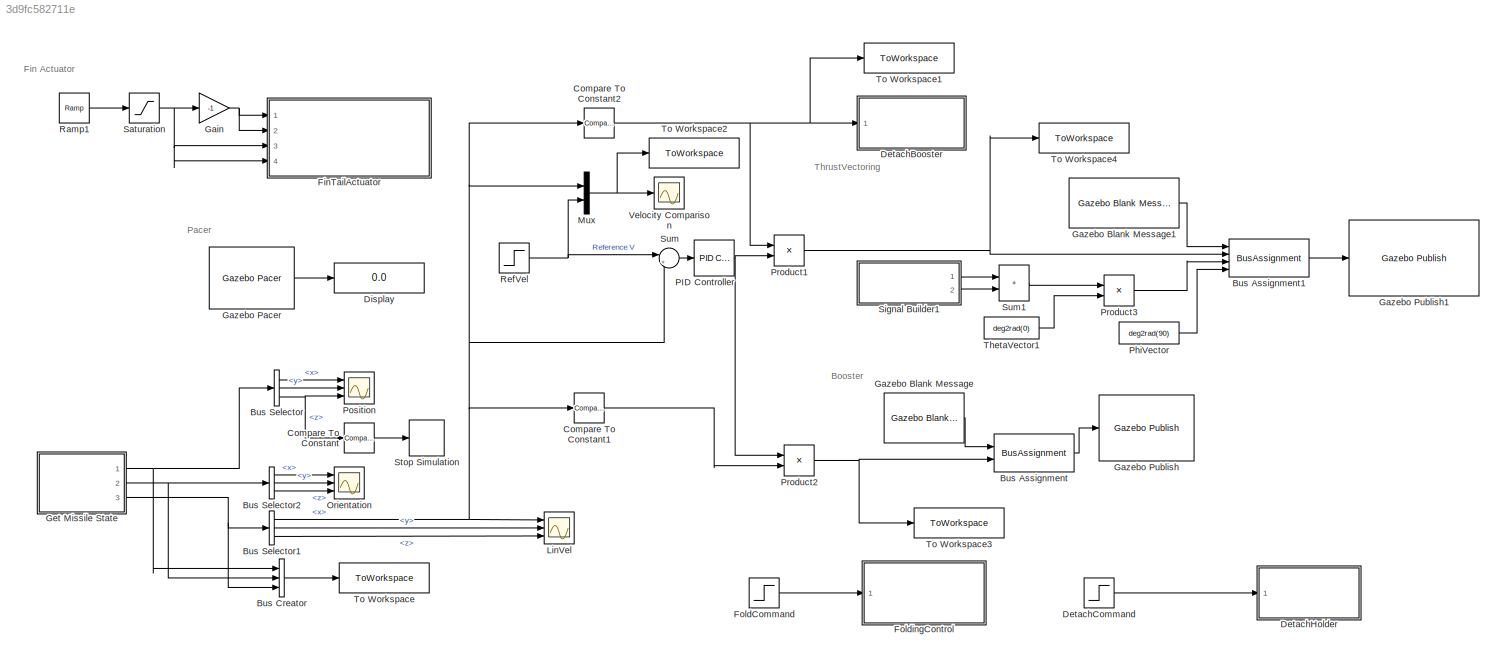
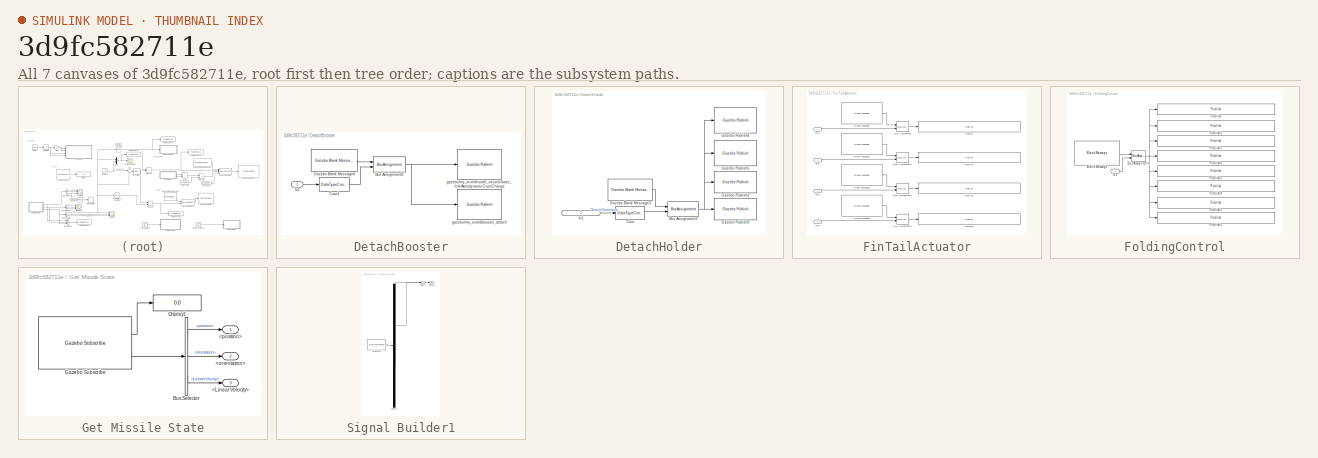
[diagram: thumbnail index - all 7 canvases of the model, root first then tree order]
MODEL slx_3d9fc582711e
KIND model
CONFIG AbsTol = auto
CONFIG EnableMultiTasking = off
CONFIG FixedStep = 1e-3
CONFIG MaxStep = auto
CONFIG MinStep = auto
CONFIG RelTol = 1e-3
CONFIG SampleTimeConstraint = Unconstrained
CONFIG SolverName = FixedStepAuto
CONFIG StartTime = 0.0
CONFIG StopTime = 30
BLOCK [BusAssignment] Bus Assignment
  AssignedSignals = data
  Ports = [2, 1]
BLOCK [BusAssignment] Bus Assignment1
  AssignedSignals = r,theta,phi
  Ports = [4, 1]
BLOCK [BusCreator] Bus Creator
  DisplayOption = bar
  InheritFromInputs = on
  Inputs = 3
  Ports = [3, 1]
BLOCK [BusSelector] Bus Selector
  OutputSignals = x,y,z
  Ports = [1, 3]
BLOCK [BusSelector] Bus Selector1
  OutputSignals = x,y,z
  Ports = [1, 3]
BLOCK [BusSelector] Bus Selector2
  OutputSignals = x,y,z
  Ports = [1, 3]
BLOCK [Reference] Compare To Constant  REF=simulink/Logic and Bit
Operations/Compare
To Constant
  Ports = [1, 1]
  SourceBlock = simulink/Logic and Bit\nOperations/Compare\nTo Constant
  SourceProductBaseCode = SL
  SourceType = Compare To Constant
BLOCK [Reference] Compare To Constant1  REF=simulink/Logic and Bit
Operations/Compare
To Constant
  Ports = [1, 1]
  SourceBlock = simulink/Logic and Bit\nOperations/Compare\nTo Constant
  SourceProductBaseCode = SL
  SourceType = Compare To Constant
BLOCK [Reference] Compare To Constant2  REF=simulink/Logic and Bit
Operations/Compare
To Constant
  Ports = [1, 1]
  SourceBlock = simulink/Logic and Bit\nOperations/Compare\nTo Constant
  SourceProductBaseCode = SL
  SourceType = Compare To Constant
BLOCK [SubSystem] DetachBooster
  Ports = [1]
  RequestExecContextInheritance = off
BLOCK [BusAssignment] DetachBooster/Bus Assignment4
  AssignedSignals = data
  Ports = [2, 1]
BLOCK [DataTypeConversion] DetachBooster/Cast1
  OutDataTypeStr = int32
  RndMeth = Floor
  SaturateOnIntegerOverflow = off
BLOCK [Reference] DetachBooster/Gazebo Blank Message4  REF=robotgazebolib/Gazebo Blank Message
  Ports = [0, 1]
  SourceBlock = robotgazebolib/Gazebo Blank Message
  SourceProductBaseCode = RO
  SourceType = Gazebo Blank Message
BLOCK [Inport] DetachBooster/In1
BLOCK [Reference] DetachBooster/gazebo//my_world//booster_detach  REF=robotgazebolib/Gazebo Publish
  Ports = [1]
  SourceBlock = robotgazebolib/Gazebo Publish
  SourceProductBaseCode = RO
  SourceType = Gazebo Publish
BLOCK [Reference] DetachBooster/gazebo//my_world//model_missile//base_link//AerodynamicCaseChange  REF=robotgazebolib/Gazebo Publish
  Ports = [1]
  SourceBlock = robotgazebolib/Gazebo Publish
  SourceProductBaseCode = RO
  SourceType = Gazebo Publish
BLOCK [Step] DetachCommand
  SampleTime = 0
  Time = 0.5
BLOCK [SubSystem] DetachHolder
  Ports = [1]
  RequestExecContextInheritance = off
BLOCK [BusAssignment] DetachHolder/Bus Assignment3
  AssignedSignals = data
  Ports = [2, 1]
BLOCK [DataTypeConversion] DetachHolder/Cast
  OutDataTypeStr = int32
  RndMeth = Floor
  SaturateOnIntegerOverflow = off
BLOCK [Reference] DetachHolder/Gazebo Blank Message3  REF=robotgazebolib/Gazebo Blank Message
  Ports = [0, 1]
  SourceBlock = robotgazebolib/Gazebo Blank Message
  SourceProductBaseCode = RO
  SourceType = Gazebo Blank Message
BLOCK [Reference] DetachHolder/Gazebo Publish2  REF=robotgazebolib/Gazebo Publish
  Ports = [1]
  SourceBlock = robotgazebolib/Gazebo Publish
  SourceProductBaseCode = RO
  SourceType = Gazebo Publish
BLOCK [Reference] DetachHolder/Gazebo Publish3  REF=robotgazebolib/Gazebo Publish
  Ports = [1]
  SourceBlock = robotgazebolib/Gazebo Publish
  SourceProductBaseCode = RO
  SourceType = Gazebo Publish
BLOCK [Reference] DetachHolder/Gazebo Publish4  REF=robotgazebolib/Gazebo Publish
  Ports = [1]
  SourceBlock = robotgazebolib/Gazebo Publish
  SourceProductBaseCode = RO
  SourceType = Gazebo Publish
BLOCK [Reference] DetachHolder/Gazebo Publish5  REF=robotgazebolib/Gazebo Publish
  Ports = [1]
  SourceBlock = robotgazebolib/Gazebo Publish
  SourceProductBaseCode = RO
  SourceType = Gazebo Publish
BLOCK [Inport] DetachHolder/In1
  IconDisplay = Port number and signal name
BLOCK [Display] Display
  Decimation = 1
  Ports = [1]
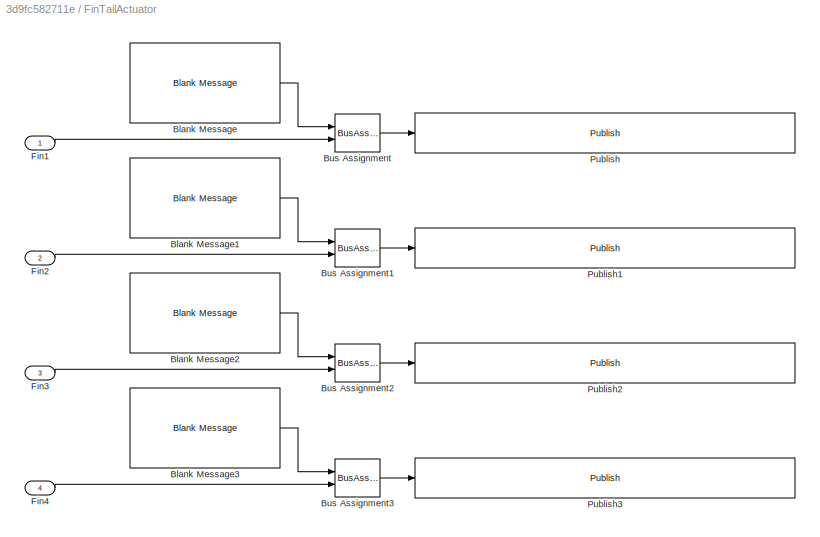
BLOCK [SubSystem] FinTailActuator
  Ports = [4]
  RequestExecContextInheritance = off
BLOCK [Reference] FinTailActuator/Blank Message  REF=robotlib/Blank Message
  Ports = [0, 1]
  SourceBlock = robotlib/Blank Message
  SourceProductBaseCode = RR
  SourceType = ROS Blank Message
BLOCK [Reference] FinTailActuator/Blank Message1  REF=robotlib/Blank Message
  Ports = [0, 1]
  SourceBlock = robotlib/Blank Message
  SourceProductBaseCode = RR
  SourceType = ROS Blank Message
BLOCK [Reference] FinTailActuator/Blank Message2  REF=robotlib/Blank Message
  Ports = [0, 1]
  SourceBlock = robotlib/Blank Message
  SourceProductBaseCode = RR
  SourceType = ROS Blank Message
BLOCK [Reference] FinTailActuator/Blank Message3  REF=robotlib/Blank Message
  Ports = [0, 1]
  SourceBlock = robotlib/Blank Message
  SourceProductBaseCode = RR
  SourceType = ROS Blank Message
BLOCK [BusAssignment] FinTailActuator/Bus Assignment
  AssignedSignals = Data
  Ports = [2, 1]
BLOCK [BusAssignment] FinTailActuator/Bus Assignment1
  AssignedSignals = Data
  Ports = [2, 1]
BLOCK [BusAssignment] FinTailActuator/Bus Assignment2
  AssignedSignals = Data
  Ports = [2, 1]
BLOCK [BusAssignment] FinTailActuator/Bus Assignment3
  AssignedSignals = Data
  Ports = [2, 1]
BLOCK [Inport] FinTailActuator/Fin1
BLOCK [Inport] FinTailActuator/Fin2
  Port = 2
BLOCK [Inport] FinTailActuator/Fin3
  Port = 3
BLOCK [Inport] FinTailActuator/Fin4
  Port = 4
BLOCK [Reference] FinTailActuator/Publish  REF=robotlib/Publish
  Ports = [1]
  SourceBlock = robotlib/Publish
  SourceProductBaseCode = RR
  SourceType = ROS Publish
BLOCK [Reference] FinTailActuator/Publish1  REF=robotlib/Publish
  Ports = [1]
  SourceBlock = robotlib/Publish
  SourceProductBaseCode = RR
  SourceType = ROS Publish
BLOCK [Reference] FinTailActuator/Publish2  REF=robotlib/Publish
  Ports = [1]
  SourceBlock = robotlib/Publish
  SourceProductBaseCode = RR
  SourceType = ROS Publish
BLOCK [Reference] FinTailActuator/Publish3  REF=robotlib/Publish
  Ports = [1]
  SourceBlock = robotlib/Publish
  SourceProductBaseCode = RR
  SourceType = ROS Publish
BLOCK [Step] FoldCommand
  After = 0
  Before = deg2rad(123)
  SampleTime = 0
  Time = 0.5
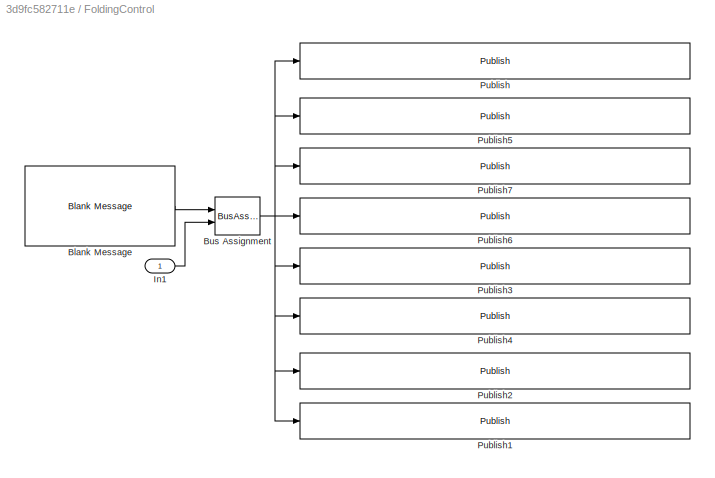
BLOCK [SubSystem] FoldingControl
  Ports = [1]
  RequestExecContextInheritance = off
BLOCK [Reference] FoldingControl/Blank Message  REF=robotlib/Blank Message
  Ports = [0, 1]
  SourceBlock = robotlib/Blank Message
  SourceProductBaseCode = RR
  SourceType = ROS Blank Message
BLOCK [BusAssignment] FoldingControl/Bus Assignment
  AssignedSignals = Data
  Ports = [2, 1]
BLOCK [Inport] FoldingControl/In1
BLOCK [Reference] FoldingControl/Publish  REF=robotlib/Publish
  Ports = [1]
  SourceBlock = robotlib/Publish
  SourceProductBaseCode = RR
  SourceType = ROS Publish
BLOCK [Reference] FoldingControl/Publish1  REF=robotlib/Publish
  Ports = [1]
  SourceBlock = robotlib/Publish
  SourceProductBaseCode = RR
  SourceType = ROS Publish
BLOCK [Reference] FoldingControl/Publish2  REF=robotlib/Publish
  Ports = [1]
  SourceBlock = robotlib/Publish
  SourceProductBaseCode = RR
  SourceType = ROS Publish
BLOCK [Reference] FoldingControl/Publish3  REF=robotlib/Publish
  Ports = [1]
  SourceBlock = robotlib/Publish
  SourceProductBaseCode = RR
  SourceType = ROS Publish
BLOCK [Reference] FoldingControl/Publish4  REF=robotlib/Publish
  Ports = [1]
  SourceBlock = robotlib/Publish
  SourceProductBaseCode = RR
  SourceType = ROS Publish
BLOCK [Reference] FoldingControl/Publish5  REF=robotlib/Publish
  Ports = [1]
  SourceBlock = robotlib/Publish
  SourceProductBaseCode = RR
  SourceType = ROS Publish
BLOCK [Reference] FoldingControl/Publish6  REF=robotlib/Publish
  Ports = [1]
  SourceBlock = robotlib/Publish
  SourceProductBaseCode = RR
  SourceType = ROS Publish
BLOCK [Reference] FoldingControl/Publish7  REF=robotlib/Publish
  Ports = [1]
  SourceBlock = robotlib/Publish
  SourceProductBaseCode = RR
  SourceType = ROS Publish
BLOCK [Gain] Gain
  Gain = -1
BLOCK [Reference] Gazebo Blank Message  REF=robotgazebolib/Gazebo Blank Message
  Ports = [0, 1]
  SourceBlock = robotgazebolib/Gazebo Blank Message
  SourceProductBaseCode = RO
  SourceType = Gazebo Blank Message
BLOCK [Reference] Gazebo Blank Message1  REF=robotgazebolib/Gazebo Blank Message
  Ports = [0, 1]
  SourceBlock = robotgazebolib/Gazebo Blank Message
  SourceProductBaseCode = RO
  SourceType = Gazebo Blank Message
BLOCK [Reference] Gazebo Pacer  REF=robotgazebolib/Gazebo Pacer
  Ports = [0, 1]
  SourceBlock = robotgazebolib/Gazebo Pacer
  SourceProductBaseCode = RO
  SourceType = Gazebo Pacer
BLOCK [Reference] Gazebo Publish  REF=robotgazebolib/Gazebo Publish
  Ports = [1]
  SourceBlock = robotgazebolib/Gazebo Publish
  SourceProductBaseCode = RO
  SourceType = Gazebo Publish
BLOCK [Reference] Gazebo Publish1  REF=robotgazebolib/Gazebo Publish
  Ports = [1]
  SourceBlock = robotgazebolib/Gazebo Publish
  SourceProductBaseCode = RO
  SourceType = Gazebo Publish
BLOCK [SubSystem] Get Missile State
  Ports = [0, 3]
  RequestExecContextInheritance = off
BLOCK [Outport] Get Missile State/<LinearVelocity>
  Port = 3
BLOCK [Outport] Get Missile State/<orientation>
  Port = 2
BLOCK [Outport] Get Missile State/<position>
BLOCK [BusSelector] Get Missile State/Bus Selector
  OutputSignals = Pose.position,Pose.orientation,LinearVelocity
  Ports = [1, 3]
BLOCK [Display] Get Missile State/Display1
  Decimation = 1
  Ports = [1]
BLOCK [Reference] Get Missile State/Gazebo Subscribe  REF=robotgazebolib/Gazebo Subscribe
  Ports = [0, 2]
  SourceBlock = robotgazebolib/Gazebo Subscribe
  SourceProductBaseCode = RO
  SourceType = Gazebo Subscribe
BLOCK [Scope] LinVel
  Floating = off
  NumInputPorts = 3
  Ports = [3]
  ScopeSpecificationString = Simulink.scopes.TimeScopeBlockCfg('CurrentConfiguration', extmgr.ConfigurationSet(extmgr.Configuration('Core','General UI',true),extmgr.Configuration('Core','Source UI',true),extmgr.Configuration('Sources','WiredSimulink',true,'DataLoggingVariableName','ScopeData5'),extmgr.Configuration('Visuals','Time Domain',true,'SerializedDisplays',{struct('MinYLimReal','-31.12911','MaxYLimReal','280.162','YLa...<+2800ch>
BLOCK [Mux] Mux
  DisplayOption = bar
  Inputs = 2
  Ports = [2, 1]
BLOCK [Scope] Orientation
  Floating = off
  NumInputPorts = 3
  Ports = [3]
  ScopeSpecificationString = Simulink.scopes.TimeScopeBlockCfg('CurrentConfiguration', extmgr.ConfigurationSet(extmgr.Configuration('Core','General UI',true),extmgr.Configuration('Core','Source UI',true),extmgr.Configuration('Sources','WiredSimulink',true,'DataLoggingVariableName','ScopeData1'),extmgr.Configuration('Visuals','Time Domain',true,'SerializedDisplays',{struct('MinYLimReal','-0.000032','MaxYLimReal','0.000004','YL...<+2767ch>
BLOCK [Reference] PID Controller  REF=slpidlib/PID Controller
  Ports = [1, 1]
  SourceBlock = slpidlib/PID Controller
  SourceProductBaseCode = SL
  SourceType = PID 1dof
BLOCK [Constant] PhiVector
  Value = deg2rad(90)
BLOCK [Scope] Position
  Floating = off
  NumInputPorts = 3
  Ports = [3]
  ScopeSpecificationString = Simulink.scopes.TimeScopeBlockCfg('CurrentConfiguration', extmgr.ConfigurationSet(extmgr.Configuration('Core','General UI',true),extmgr.Configuration('Core','Source UI',true),extmgr.Configuration('Sources','WiredSimulink',true,'DataLoggingVariableName','ScopeData4'),extmgr.Configuration('Visuals','Time Domain',true,'SerializedDisplays',{struct('MinYLimReal','-18130.71201','MaxYLimReal','-16823.591...<+2815ch>
BLOCK [Product] Product1
  Ports = [2, 1]
BLOCK [Product] Product2
  Ports = [2, 1]
BLOCK [Product] Product3
  Ports = [2, 1]
BLOCK [Reference] Ramp1  REF=simulink/Sources/Ramp
  Ports = [0, 1]
  SourceBlock = simulink/Sources/Ramp
  SourceProductBaseCode = SL
  SourceType = Ramp
BLOCK [Step] RefVel
  After = 250
  SampleTime = 0
  Time = 1e-3
BLOCK [Saturate] Saturation
  LowerLimit = -deg2rad(10)
  UpperLimit = deg2rad(10)
BLOCK [SubSystem] Signal Builder1
  ClipboardFcn = sigbuilder_block('clipboard');
  CloseFcn = sigbuilder_block('close');
  ContinueFcn = sigbuilder_block('continue');
  CopyFcn = sigbuilder_block('copy');
  DeleteFcn = sigbuilder_block('delete');
  LoadFcn = sigbuilder_block('load');
  MaskHideContents = on
  ModelCloseFcn = sigbuilder_block('modelClose');
  NameChangeFcn = sigbuilder_block('namechange');
  OpenFcn = sigbuilder_block('open',[40.5 0 1399.5 612 ]);
  PauseFcn = sigbuilder_block('pause');
  Ports = [0, 2]
  PreSaveFcn = sigbuilder_block('preSave');
  RequestExecContextInheritance = off
  StartFcn = sigbuilder_block('start');
  StopFcn = sigbuilder_block('stop');
  Tag = STV Subsys
BLOCK [Demux] Signal Builder1/Demux
  DisplayOption = none
  Outputs = 2
  Ports = [1, 2]
  Tag = STV Demux
BLOCK [FromWorkspace] Signal Builder1/FromWs
  Tag = STV FromWs
  VariableName = tuvar
BLOCK [Outport] Signal Builder1/Signal 1
  Tag = STV Outport
BLOCK [Outport] Signal Builder1/Signal 3
  Port = 2
  Tag = STV Outport
BLOCK [Stop] Stop Simulation
BLOCK [Sum] Sum
  Inputs = |+-
  Ports = [2, 1]
BLOCK [Sum] Sum1
  IconShape = rectangular
  Ports = [2, 1]
BLOCK [Constant] ThetaVector1
  Value = deg2rad(0)
BLOCK [ToWorkspace] To Workspace
  FixptAsFi = on
  MaxDataPoints = inf
  Ports = [1]
  SampleTime = -1
  SaveFormat = Timeseries
  VariableName = simstate
BLOCK [ToWorkspace] To Workspace1
  FixptAsFi = on
  MaxDataPoints = inf
  Ports = [1]
  SampleTime = -1
  SaveFormat = Timeseries
  VariableName = detaching
BLOCK [ToWorkspace] To Workspace2
  FixptAsFi = on
  MaxDataPoints = inf
  Ports = [1]
  SampleTime = -1
  SaveFormat = Timeseries
  VariableName = velocity
BLOCK [ToWorkspace] To Workspace3
  FixptAsFi = on
  MaxDataPoints = inf
  Ports = [1]
  SampleTime = -1
  SaveFormat = Timeseries
  VariableName = BoostingForce
BLOCK [ToWorkspace] To Workspace4
  FixptAsFi = on
  MaxDataPoints = inf
  Ports = [1]
  SampleTime = -1
  SaveFormat = Timeseries
  VariableName = ThrustingForce
BLOCK [Scope] Velocity Comparison
  Floating = off
  NumInputPorts = 1
  Ports = [1]
  ScopeSpecificationString = Simulink.scopes.TimeScopeBlockCfg('CurrentConfiguration', extmgr.ConfigurationSet(extmgr.Configuration('Core','General UI',true),extmgr.Configuration('Core','Source UI',true),extmgr.Configuration('Sources','WiredSimulink',true,'DataLoggingVariableName','ScopeData6'),extmgr.Configuration('Visuals','Time Domain',true,'SerializedDisplays',{struct('MinYLimReal','-31.25','MaxYLimReal','281.25','YLabelR...<+1388ch>
ANNOTATION (root): Booster
ANNOTATION (root): Fin Actuator
ANNOTATION (root): Pacer
ANNOTATION (root): ThrustVectoring
LINE Bus Assignment1:1 -> Gazebo Publish1:1
LINE Bus Assignment:1 -> Gazebo Publish:1
LINE Bus Creator:1 -> To Workspace:1
NET Bus Selector1:1 -> Compare To Constant1:1, Compare To Constant2:1, LinVel:1, Mux:1, Sum:2
LINE Bus Selector1:2 -> LinVel:2
LINE Bus Selector1:3 -> LinVel:3
LINE Bus Selector2:1 -> Orientation:1
LINE Bus Selector2:2 -> Orientation:2
LINE Bus Selector2:3 -> Orientation:3
LINE Bus Selector:1 -> Position:1
LINE Bus Selector:2 -> Position:2
NET Bus Selector:3 -> Compare To Constant:1, Position:3
LINE Compare To Constant1:1 -> Product2:2
NET Compare To Constant2:1 -> DetachBooster:1, Product1:1, To Workspace1:1
LINE Compare To Constant:1 -> Stop Simulation:1
NET DetachBooster/Bus Assignment4:1 -> DetachBooster/gazebo//my_world//booster_detach:1, DetachBooster/gazebo//my_world//model_missile//base_link//AerodynamicCaseChange:1
LINE DetachBooster/Cast1:1 -> DetachBooster/Bus Assignment4:2
LINE DetachBooster/Gazebo Blank Message4:1 -> DetachBooster/Bus Assignment4:1
LINE DetachBooster/In1:1 -> DetachBooster/Cast1:1
LINE DetachCommand:1 -> DetachHolder:1
NET DetachHolder/Bus Assignment3:1 -> DetachHolder/Gazebo Publish2:1, DetachHolder/Gazebo Publish3:1, DetachHolder/Gazebo Publish4:1, DetachHolder/Gazebo Publish5:1
LINE DetachHolder/Cast:1 -> DetachHolder/Bus Assignment3:2
LINE DetachHolder/Gazebo Blank Message3:1 -> DetachHolder/Bus Assignment3:1
LINE DetachHolder/In1:1 -> DetachHolder/Cast:1
LINE FinTailActuator/Blank Message1:1 -> FinTailActuator/Bus Assignment1:1
LINE FinTailActuator/Blank Message2:1 -> FinTailActuator/Bus Assignment2:1
LINE FinTailActuator/Blank Message3:1 -> FinTailActuator/Bus Assignment3:1
LINE FinTailActuator/Blank Message:1 -> FinTailActuator/Bus Assignment:1
LINE FinTailActuator/Bus Assignment1:1 -> FinTailActuator/Publish1:1
LINE FinTailActuator/Bus Assignment2:1 -> FinTailActuator/Publish2:1
LINE FinTailActuator/Bus Assignment3:1 -> FinTailActuator/Publish3:1
LINE FinTailActuator/Bus Assignment:1 -> FinTailActuator/Publish:1
LINE FinTailActuator/Fin1:1 -> FinTailActuator/Bus Assignment:2
LINE FinTailActuator/Fin2:1 -> FinTailActuator/Bus Assignment1:2
LINE FinTailActuator/Fin3:1 -> FinTailActuator/Bus Assignment2:2
LINE FinTailActuator/Fin4:1 -> FinTailActuator/Bus Assignment3:2
LINE FoldCommand:1 -> FoldingControl:1
LINE FoldingControl/Blank Message:1 -> FoldingControl/Bus Assignment:1
NET FoldingControl/Bus Assignment:1 -> FoldingControl/Publish1:1, FoldingControl/Publish2:1, FoldingControl/Publish3:1, FoldingControl/Publish4:1, FoldingControl/Publish5:1, FoldingControl/Publish6:1, FoldingControl/Publish7:1, FoldingControl/Publish:1
LINE FoldingControl/In1:1 -> FoldingControl/Bus Assignment:2
NET Gain:1 -> FinTailActuator:1, FinTailActuator:2
LINE Gazebo Blank Message1:1 -> Bus Assignment1:1
LINE Gazebo Blank Message:1 -> Bus Assignment:1
LINE Gazebo Pacer:1 -> Display:1
LINE Get Missile State/Bus Selector:1 -> Get Missile State/<position>:1
LINE Get Missile State/Bus Selector:2 -> Get Missile State/<orientation>:1
LINE Get Missile State/Bus Selector:3 -> Get Missile State/<LinearVelocity>:1
LINE Get Missile State/Gazebo Subscribe:1 -> Get Missile State/Display1:1
LINE Get Missile State/Gazebo Subscribe:2 -> Get Missile State/Bus Selector:1
NET Get Missile State:1 -> Bus Creator:1, Bus Selector:1
NET Get Missile State:2 -> Bus Creator:2, Bus Selector2:1
NET Get Missile State:3 -> Bus Creator:3, Bus Selector1:1
NET Mux:1 -> To Workspace2:1, Velocity Comparison:1
NET PID Controller:1 -> Product1:2, Product2:1
LINE PhiVector:1 -> Bus Assignment1:4
NET Product1:1 -> Bus Assignment1:2, To Workspace4:1
NET Product2:1 -> Bus Assignment:2, To Workspace3:1
LINE Product3:1 -> Bus Assignment1:3
LINE Ramp1:1 -> Saturation:1
NET RefVel:1 -> Mux:2, Sum:1
NET Saturation:1 -> FinTailActuator:3, FinTailActuator:4, Gain:1
LINE Signal Builder1:1 -> Sum1:1
LINE Signal Builder1:2 -> Sum1:2
LINE Sum1:1 -> Product3:1
LINE Sum:1 -> PID Controller:1
LINE ThetaVector1:1 -> Product3:2
note: NET lines group one-source signal fan-out (src -> all destinations, sorted); 1:1 wires keep LINE
